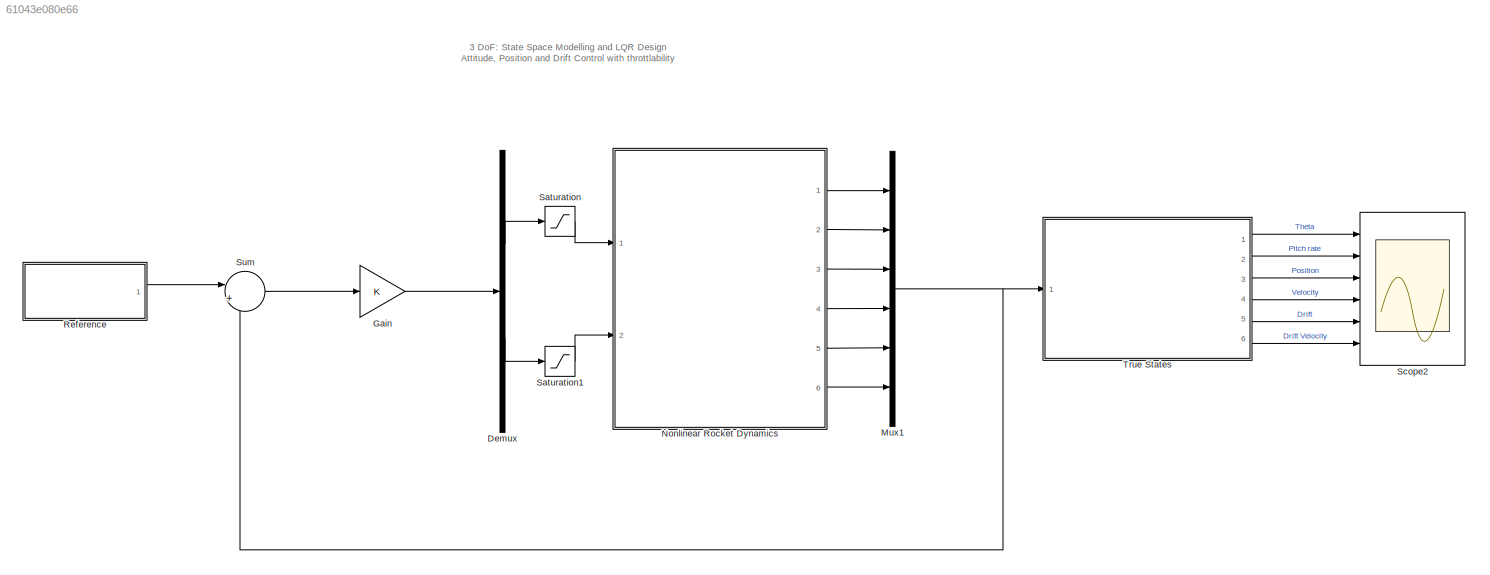
MODEL slx_61043e080e66
KIND model
CONFIG AbsTol = auto
CONFIG EnableMultiTasking = off
CONFIG FixedStep = auto
CONFIG MaxStep = auto
CONFIG MinStep = auto
CONFIG RelTol = 1e-3
CONFIG SampleTimeConstraint = Unconstrained
CONFIG SolverName = VariableStepAuto
CONFIG StartTime = 0.0
CONFIG StopTime = 12
BLOCK [Demux] Demux
  Outputs = 2
  Ports = [1, 2]
BLOCK [Gain] Gain
  Gain = K
  Multiplication = Matrix(K*u) (u vector)
BLOCK [Mux] Mux1
  DisplayOption = bar
  Inputs = 6
  Ports = [6, 1]
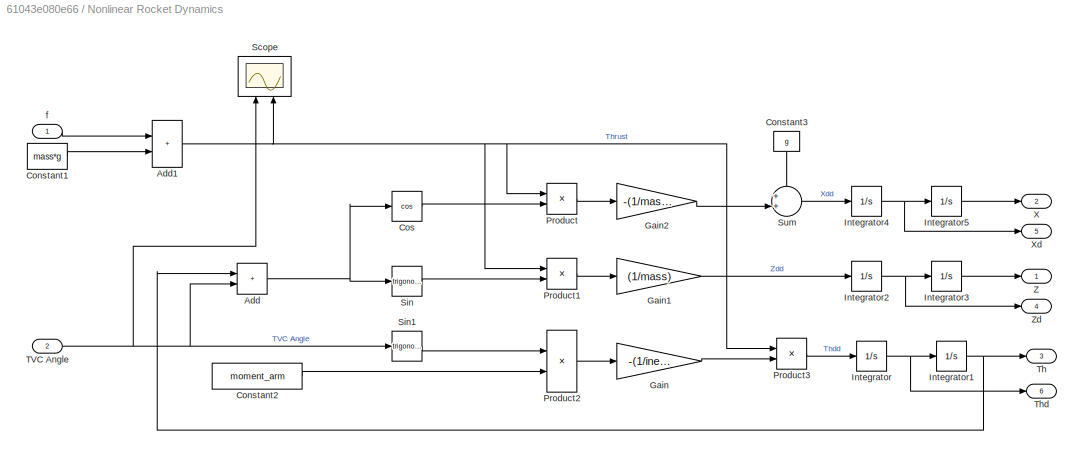
BLOCK [SubSystem] Nonlinear Rocket Dynamics
  Ports = [2, 6]
  RequestExecContextInheritance = off
BLOCK [Sum] Nonlinear Rocket Dynamics/Add
  IconShape = rectangular
  Ports = [2, 1]
BLOCK [Sum] Nonlinear Rocket Dynamics/Add1
  IconShape = rectangular
  Ports = [2, 1]
BLOCK [Constant] Nonlinear Rocket Dynamics/Constant1
  Value = mass*g
BLOCK [Constant] Nonlinear Rocket Dynamics/Constant2
  Value = moment_arm
BLOCK [Constant] Nonlinear Rocket Dynamics/Constant3
  NameLocation = left
  Value = g
BLOCK [Trigonometry] Nonlinear Rocket Dynamics/Cos
  Operator = cos
  Ports = [1, 1]
BLOCK [Gain] Nonlinear Rocket Dynamics/Gain
  Gain = -(1/inertiayy)
BLOCK [Gain] Nonlinear Rocket Dynamics/Gain1
  Gain = (1/mass)
BLOCK [Gain] Nonlinear Rocket Dynamics/Gain2
  Gain = -(1/mass)
BLOCK [Integrator] Nonlinear Rocket Dynamics/Integrator
  Ports = [1, 1]
BLOCK [Integrator] Nonlinear Rocket Dynamics/Integrator1
  InitialCondition = 0.523
  Ports = [1, 1]
BLOCK [Integrator] Nonlinear Rocket Dynamics/Integrator2
  Ports = [1, 1]
BLOCK [Integrator] Nonlinear Rocket Dynamics/Integrator3
  Ports = [1, 1]
BLOCK [Integrator] Nonlinear Rocket Dynamics/Integrator4
  Ports = [1, 1]
BLOCK [Integrator] Nonlinear Rocket Dynamics/Integrator5
  InitialCondition = 30
  Ports = [1, 1]
BLOCK [Product] Nonlinear Rocket Dynamics/Product
  Ports = [2, 1]
BLOCK [Product] Nonlinear Rocket Dynamics/Product1
  Ports = [2, 1]
BLOCK [Product] Nonlinear Rocket Dynamics/Product2
  Ports = [2, 1]
BLOCK [Product] Nonlinear Rocket Dynamics/Product3
  Ports = [2, 1]
BLOCK [Scope] Nonlinear Rocket Dynamics/Scope
  Floating = off
  NameLocation = right
  NumInputPorts = 2
  Ports = [2]
  ScopeSpecificationString = Simulink.scopes.TimeScopeBlockCfg('CurrentConfiguration', extmgr.ConfigurationSet(extmgr.Configuration('Core','General UI',true),extmgr.Configuration('Core','Source UI',true),extmgr.Configuration('Sources','WiredSimulink',true,'DataLoggingVariableName','ScopeData1'),extmgr.Configuration('Visuals','Time Domain',true,'SerializedDisplays',{struct('MinYLimReal','-3.10399','MaxYLimReal','26.19589','YLa...<+1431ch>
BLOCK [Trigonometry] Nonlinear Rocket Dynamics/Sin
  Ports = [1, 1]
BLOCK [Trigonometry] Nonlinear Rocket Dynamics/Sin1
  Ports = [1, 1]
BLOCK [Sum] Nonlinear Rocket Dynamics/Sum
  Inputs = ++|
  Ports = [2, 1]
BLOCK [Inport] Nonlinear Rocket Dynamics/TVC Angle
  Port = 2
BLOCK [Outport] Nonlinear Rocket Dynamics/Th
  Port = 3
BLOCK [Outport] Nonlinear Rocket Dynamics/Thd
  Port = 6
BLOCK [Outport] Nonlinear Rocket Dynamics/X
  Port = 2
BLOCK [Outport] Nonlinear Rocket Dynamics/Xd
  Port = 5
BLOCK [Outport] Nonlinear Rocket Dynamics/Z
BLOCK [Outport] Nonlinear Rocket Dynamics/Zd
  Port = 4
BLOCK [Inport] Nonlinear Rocket Dynamics/f
  NameLocation = top
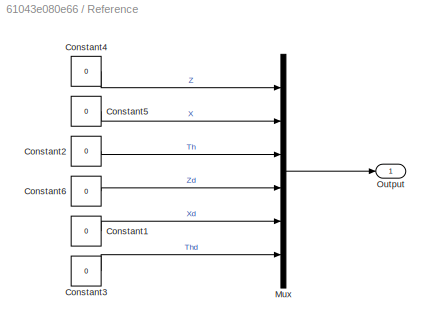
BLOCK [SubSystem] Reference
  Ports = [0, 1]
  RequestExecContextInheritance = off
BLOCK [Constant] Reference/Constant1
  Value = 0
BLOCK [Constant] Reference/Constant2
  Value = 0
BLOCK [Constant] Reference/Constant3
  Value = 0
BLOCK [Constant] Reference/Constant4
  Value = 0
BLOCK [Constant] Reference/Constant5
  Value = 0
BLOCK [Constant] Reference/Constant6
  Value = 0
BLOCK [Mux] Reference/Mux
  DisplayOption = bar
  Inputs = 6
  Ports = [6, 1]
BLOCK [Outport] Reference/Output
BLOCK [Saturate] Saturation
  LowerLimit = 0
  UpperLimit = 15
BLOCK [Saturate] Saturation1
  LowerLimit = -0.174
  UpperLimit = 0.174
BLOCK [Scope] Scope2
  Floating = off
  NumInputPorts = 6
  Ports = [6]
  ScopeSpecificationString = Simulink.scopes.TimeScopeBlockCfg('CurrentConfiguration', extmgr.ConfigurationSet(extmgr.Configuration('Core','General UI',true),extmgr.Configuration('Core','Source UI',true),extmgr.Configuration('Sources','WiredSimulink',true),extmgr.Configuration('Visuals','Time Domain',true,'SerializedDisplays',{struct('MinYLimReal','-28.93065','MaxYLimReal','36.54785','YLabelReal','','MinYLimMag','0.00000','Ma...<+1597ch>
BLOCK [Sum] Sum
  Inputs = |+-
  Ports = [2, 1]
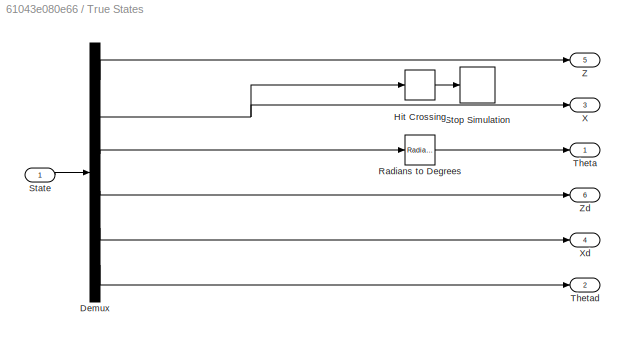
BLOCK [SubSystem] True States
  Ports = [1, 6]
  RequestExecContextInheritance = off
BLOCK [Demux] True States/Demux
  Outputs = 6
  Ports = [1, 6]
BLOCK [HitCross] True States/Hit Crossing
  HitCrossingDirection = falling
  Ports = [1, 1]
BLOCK [Reference] True States/Radians to Degrees  REF=simulink_extras/Transformations/Radians
to Degrees
  Ports = [1, 1]
  SourceBlock = simulink_extras/Transformations/Radians\nto Degrees
  SourceProductBaseCode = SL
  SourceType = RadiansToDegrees
BLOCK [Inport] True States/State
BLOCK [Stop] True States/Stop Simulation
BLOCK [Outport] True States/Theta
BLOCK [Outport] True States/Thetad
  Port = 2
BLOCK [Outport] True States/X
  Port = 3
BLOCK [Outport] True States/Xd
  Port = 4
BLOCK [Outport] True States/Z
  Port = 5
BLOCK [Outport] True States/Zd
  Port = 6
ANNOTATION (root): 3 DoF: State Space Modelling and LQR Design Attitude, Position and Drift Control with throttlability
LINE Demux:1 -> Saturation:1
LINE Demux:2 -> Saturation1:1
LINE Gain:1 -> Demux:1
NET Mux1:1 -> Sum:2, True States:1
NET Nonlinear Rocket Dynamics/Add1:1 -> Nonlinear Rocket Dynamics/Product1:1, Nonlinear Rocket Dynamics/Product3:1, Nonlinear Rocket Dynamics/Product:1, Nonlinear Rocket Dynamics/Scope:2
NET Nonlinear Rocket Dynamics/Add:1 -> Nonlinear Rocket Dynamics/Cos:1, Nonlinear Rocket Dynamics/Sin:1
LINE Nonlinear Rocket Dynamics/Constant1:1 -> Nonlinear Rocket Dynamics/Add1:2
LINE Nonlinear Rocket Dynamics/Constant2:1 -> Nonlinear Rocket Dynamics/Product2:2
LINE Nonlinear Rocket Dynamics/Constant3:1 -> Nonlinear Rocket Dynamics/Sum:1
LINE Nonlinear Rocket Dynamics/Cos:1 -> Nonlinear Rocket Dynamics/Product:2
LINE Nonlinear Rocket Dynamics/Gain1:1 -> Nonlinear Rocket Dynamics/Integrator2:1
LINE Nonlinear Rocket Dynamics/Gain2:1 -> Nonlinear Rocket Dynamics/Sum:2
LINE Nonlinear Rocket Dynamics/Gain:1 -> Nonlinear Rocket Dynamics/Product3:2
NET Nonlinear Rocket Dynamics/Integrator1:1 -> Nonlinear Rocket Dynamics/Add:1, Nonlinear Rocket Dynamics/Th:1
NET Nonlinear Rocket Dynamics/Integrator2:1 -> Nonlinear Rocket Dynamics/Integrator3:1, Nonlinear Rocket Dynamics/Zd:1
LINE Nonlinear Rocket Dynamics/Integrator3:1 -> Nonlinear Rocket Dynamics/Z:1
NET Nonlinear Rocket Dynamics/Integrator4:1 -> Nonlinear Rocket Dynamics/Integrator5:1, Nonlinear Rocket Dynamics/Xd:1
LINE Nonlinear Rocket Dynamics/Integrator5:1 -> Nonlinear Rocket Dynamics/X:1
NET Nonlinear Rocket Dynamics/Integrator:1 -> Nonlinear Rocket Dynamics/Integrator1:1, Nonlinear Rocket Dynamics/Thd:1
LINE Nonlinear Rocket Dynamics/Product1:1 -> Nonlinear Rocket Dynamics/Gain1:1
LINE Nonlinear Rocket Dynamics/Product2:1 -> Nonlinear Rocket Dynamics/Gain:1
LINE Nonlinear Rocket Dynamics/Product3:1 -> Nonlinear Rocket Dynamics/Integrator:1
LINE Nonlinear Rocket Dynamics/Product:1 -> Nonlinear Rocket Dynamics/Gain2:1
LINE Nonlinear Rocket Dynamics/Sin1:1 -> Nonlinear Rocket Dynamics/Product2:1
LINE Nonlinear Rocket Dynamics/Sin:1 -> Nonlinear Rocket Dynamics/Product1:2
LINE Nonlinear Rocket Dynamics/Sum:1 -> Nonlinear Rocket Dynamics/Integrator4:1
NET Nonlinear Rocket Dynamics/TVC Angle:1 -> Nonlinear Rocket Dynamics/Add:2, Nonlinear Rocket Dynamics/Scope:1, Nonlinear Rocket Dynamics/Sin1:1
LINE Nonlinear Rocket Dynamics/f:1 -> Nonlinear Rocket Dynamics/Add1:1
LINE Nonlinear Rocket Dynamics:1 -> Mux1:1
LINE Nonlinear Rocket Dynamics:2 -> Mux1:2
LINE Nonlinear Rocket Dynamics:3 -> Mux1:3
LINE Nonlinear Rocket Dynamics:4 -> Mux1:4
LINE Nonlinear Rocket Dynamics:5 -> Mux1:5
LINE Nonlinear Rocket Dynamics:6 -> Mux1:6
LINE Reference/Constant1:1 -> Reference/Mux:5
LINE Reference/Constant2:1 -> Reference/Mux:3
LINE Reference/Constant3:1 -> Reference/Mux:6
LINE Reference/Constant4:1 -> Reference/Mux:1
LINE Reference/Constant5:1 -> Reference/Mux:2
LINE Reference/Constant6:1 -> Reference/Mux:4
LINE Reference/Mux:1 -> Reference/Output:1
LINE Reference:1 -> Sum:1
LINE Saturation1:1 -> Nonlinear Rocket Dynamics:2
LINE Saturation:1 -> Nonlinear Rocket Dynamics:1
LINE Sum:1 -> Gain:1
LINE True States/Demux:1 -> True States/Z:1
NET True States/Demux:2 -> True States/Hit Crossing:1, True States/X:1
LINE True States/Demux:3 -> True States/Radians to Degrees:1
LINE True States/Demux:4 -> True States/Zd:1
LINE True States/Demux:5 -> True States/Xd:1
LINE True States/Demux:6 -> True States/Thetad:1
LINE True States/Hit Crossing:1 -> True States/Stop Simulation:1
LINE True States/Radians to Degrees:1 -> True States/Theta:1
LINE True States/State:1 -> True States/Demux:1
LINE True States:1 -> Scope2:1
LINE True States:2 -> Scope2:2
LINE True States:3 -> Scope2:3
LINE True States:4 -> Scope2:4
LINE True States:5 -> Scope2:5
LINE True States:6 -> Scope2:6
note: NET lines group one-source signal fan-out (src -> all destinations, sorted); 1:1 wires keep LINE
